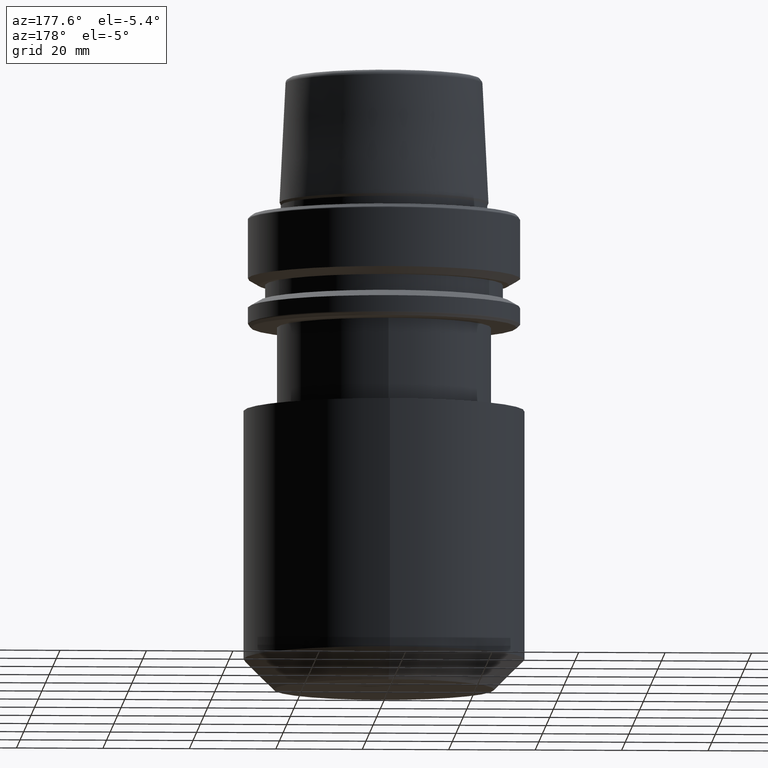
[diagram: clean part render]
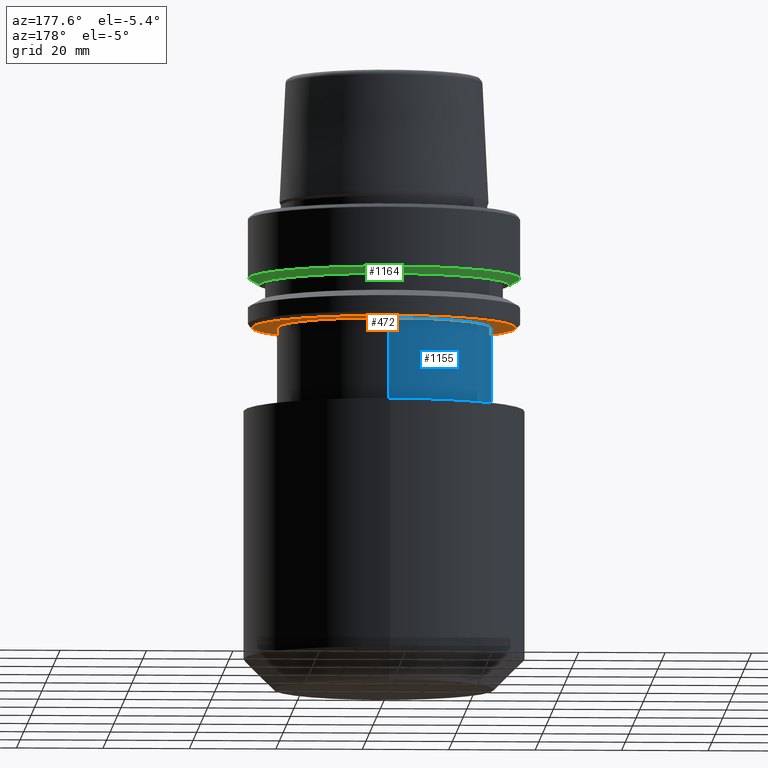
[diagram: same view with three faces highlighted in distinct colors, each labeled with its STEP entity id]
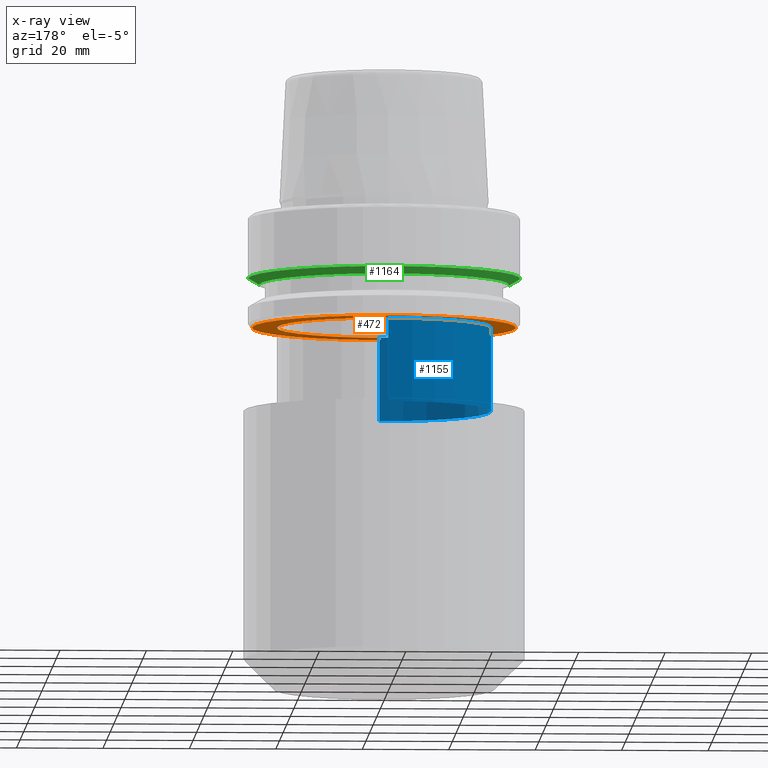
[diagram: x-ray of the same camera — body ghosted, the three highlighted faces saturated]
A machine part, auxiliary view with three faces highlighted in distinct colors.
The next image is the same camera in x-ray (body ghosted, the three faces saturated) — at least one of them is partly hidden behind the body in this view.
Their STEP definitions:

[orange] entity #472 — the highlighted planar face has unit normal (0, -0, 1).
#5 = AXIS2_PLACEMENT_3D ( 'NONE', #557, #347, #908 ) ;
#42 = DIRECTION ( 'NONE',  ( -0.0000000000000000000, -0.0000000000000000000, 1.000000000000000000 ) ) ;
#53 = DIRECTION ( 'NONE',  ( -0.0000000000000000000, -0.0000000000000000000, 1.000000000000000000 ) ) ;
#145 = CIRCLE ( 'NONE', #5, 24.75000000000001100 ) ;
#149 = AXIS2_PLACEMENT_3D ( 'NONE', #713, #42, #997 ) ;
#163 = EDGE_CURVE ( 'NONE', #687, #1171, #145, .T. ) ;
#204 = CARTESIAN_POINT ( 'NONE',  ( 0.0000000000000000000, 30.53431457505076800, -26.00000000000001100 ) ) ;
#207 = CARTESIAN_POINT ( 'NONE',  ( 30.53431457505076800, 0.0000000000000000000, -26.00000000000001100 ) ) ;
#283 = EDGE_CURVE ( 'NONE', #1268, #357, #704, .T. ) ;
#303 = DIRECTION ( 'NONE',  ( -0.0000000000000000000, -0.0000000000000000000, 1.000000000000000000 ) ) ;
#326 = FACE_BOUND ( 'NONE', #1278, .T. ) ;
#347 = DIRECTION ( 'NONE',  ( -0.0000000000000000000, -0.0000000000000000000, 1.000000000000000000 ) ) ;
#357 = VERTEX_POINT ( 'NONE', #207 ) ;
#418 = EDGE_CURVE ( 'NONE', #1171, #687, #747, .T. ) ;
#433 = CARTESIAN_POINT ( 'NONE',  ( 0.0000000000000000000, 0.0000000000000000000, -26.00000000000001100 ) ) ;
#472 = ADVANCED_FACE ( 'NONE', ( #326, #662 ), #905, .F. ) ;
#476 = ORIENTED_EDGE ( 'NONE', *, *, #163, .T. ) ;
#557 = CARTESIAN_POINT ( 'NONE',  ( 0.0000000000000000000, -1.029410340353562200E-014, -26.00000000000001100 ) ) ;
#617 = CARTESIAN_POINT ( 'NONE',  ( 3.031000827889700400E-015, -24.75000000000002100, -26.00000000000001100 ) ) ;
#630 = ORIENTED_EDGE ( 'NONE', *, *, #283, .F. ) ;
#636 = AXIS2_PLACEMENT_3D ( 'NONE', #1077, #303, #682 ) ;
#662 = FACE_OUTER_BOUND ( 'NONE', #1053, .T. ) ;
#672 = ORIENTED_EDGE ( 'NONE', *, *, #723, .F. ) ;
#682 = DIRECTION ( 'NONE',  ( 1.000000000000000000, 0.0000000000000000000, 0.0000000000000000000 ) ) ;
#687 = VERTEX_POINT ( 'NONE', #617 ) ;
#704 = CIRCLE ( 'NONE', #149, 30.53431457505076800 ) ;
#713 = CARTESIAN_POINT ( 'NONE',  ( 0.0000000000000000000, 0.0000000000000000000, -26.00000000000001100 ) ) ;
#723 = EDGE_CURVE ( 'NONE', #357, #1268, #1135, .T. ) ;
#747 = CIRCLE ( 'NONE', #636, 24.75000000000001100 ) ;
#905 = PLANE ( 'NONE',  #1233 ) ;
#908 = DIRECTION ( 'NONE',  ( 1.000000000000000000, 0.0000000000000000000, 0.0000000000000000000 ) ) ;
#925 = DIRECTION ( 'NONE',  ( 0.0000000000000000000, -0.0000000000000000000, 1.000000000000000000 ) ) ;
#994 = ORIENTED_EDGE ( 'NONE', *, *, #418, .T. ) ;
#997 = DIRECTION ( 'NONE',  ( 1.000000000000000000, 0.0000000000000000000, 0.0000000000000000000 ) ) ;
#1053 = EDGE_LOOP ( 'NONE', ( #672, #630 ) ) ;
#1066 = DIRECTION ( 'NONE',  ( 1.000000000000000000, 0.0000000000000000000, 0.0000000000000000000 ) ) ;
#1077 = CARTESIAN_POINT ( 'NONE',  ( 0.0000000000000000000, -1.029410340353562200E-014, -26.00000000000001100 ) ) ;
#1135 = CIRCLE ( 'NONE', #1270, 30.53431457505076800 ) ;
#1171 = VERTEX_POINT ( 'NONE', #1245 ) ;
#1233 = AXIS2_PLACEMENT_3D ( 'NONE', #204, #925, #1066 ) ;
#1245 = CARTESIAN_POINT ( 'NONE',  ( 0.0000000000000000000, 24.75000000000000000, -26.00000000000001100 ) ) ;
#1249 = DIRECTION ( 'NONE',  ( 1.000000000000000000, 0.0000000000000000000, 0.0000000000000000000 ) ) ;
#1263 = CARTESIAN_POINT ( 'NONE',  ( -30.53431457505076800, 3.756694181974139400E-015, -26.00000000000001100 ) ) ;
#1268 = VERTEX_POINT ( 'NONE', #1263 ) ;
#1270 = AXIS2_PLACEMENT_3D ( 'NONE', #433, #53, #1249 ) ;
#1278 = EDGE_LOOP ( 'NONE', ( #994, #476 ) ) ;

[blue] entity #1155 — the highlighted cylindrical surface (partial cylindrical patch) has radius 24.75 mm, axis along (-0, 0, -1).
#18 = CARTESIAN_POINT ( 'NONE',  ( 0.0000000000000000000, -9.331683097516130700E-015, -45.38284271247462700 ) ) ;
#44 = DIRECTION ( 'NONE',  ( -0.0000000000000000000, 4.965320723570064500E-017, -1.000000000000000000 ) ) ;
#68 = VERTEX_POINT ( 'NONE', #450 ) ;
#133 = DIRECTION ( 'NONE',  ( -0.0000000000000000000, 4.965320723570064500E-017, -1.000000000000000000 ) ) ;
#139 = DIRECTION ( 'NONE',  ( 0.0000000000000000000, 1.000000000000000000, 0.0000000000000000000 ) ) ;
#170 = CARTESIAN_POINT ( 'NONE',  ( 3.031000827889700400E-015, -24.75000000000001800, -110.0000000000000000 ) ) ;
#184 = EDGE_LOOP ( 'NONE', ( #991, #528, #950, #1092 ) ) ;
#244 = CARTESIAN_POINT ( 'NONE',  ( 0.0000000000000000000, -6.123233995736767700E-015, -110.0000000000000000 ) ) ;
#303 = DIRECTION ( 'NONE',  ( -0.0000000000000000000, -0.0000000000000000000, 1.000000000000000000 ) ) ;
#348 = VERTEX_POINT ( 'NONE', #479 ) ;
#418 = EDGE_CURVE ( 'NONE', #1171, #687, #747, .T. ) ;
#450 = CARTESIAN_POINT ( 'NONE',  ( 0.0000000000000000000, 24.75000000000000000, -45.38284271247462700 ) ) ;
#458 = AXIS2_PLACEMENT_3D ( 'NONE', #18, #44, #1139 ) ;
#479 = CARTESIAN_POINT ( 'NONE',  ( 3.031000827889700400E-015, -24.75000000000002100, -45.38284271247462700 ) ) ;
#528 = ORIENTED_EDGE ( 'NONE', *, *, #418, .F. ) ;
#549 = FACE_OUTER_BOUND ( 'NONE', #184, .T. ) ;
#579 = VECTOR ( 'NONE', #823, 1000.000000000000000 ) ;
#617 = CARTESIAN_POINT ( 'NONE',  ( 3.031000827889700400E-015, -24.75000000000002100, -26.00000000000001100 ) ) ;
#636 = AXIS2_PLACEMENT_3D ( 'NONE', #1077, #303, #682 ) ;
#669 = EDGE_CURVE ( 'NONE', #687, #348, #1183, .T. ) ;
#682 = DIRECTION ( 'NONE',  ( 1.000000000000000000, 0.0000000000000000000, 0.0000000000000000000 ) ) ;
#687 = VERTEX_POINT ( 'NONE', #617 ) ;
#741 = EDGE_CURVE ( 'NONE', #348, #68, #1084, .T. ) ;
#747 = CIRCLE ( 'NONE', #636, 24.75000000000001100 ) ;
#823 = DIRECTION ( 'NONE',  ( -0.0000000000000000000, 4.965320723570064500E-017, -1.000000000000000000 ) ) ;
#876 = VECTOR ( 'NONE', #133, 1000.000000000000000 ) ;
#950 = ORIENTED_EDGE ( 'NONE', *, *, #1121, .T. ) ;
#991 = ORIENTED_EDGE ( 'NONE', *, *, #669, .F. ) ;
#1001 = LINE ( 'NONE', #1114, #876 ) ;
#1052 = AXIS2_PLACEMENT_3D ( 'NONE', #244, #1221, #139 ) ;
#1077 = CARTESIAN_POINT ( 'NONE',  ( 0.0000000000000000000, -1.029410340353562200E-014, -26.00000000000001100 ) ) ;
#1084 = CIRCLE ( 'NONE', #458, 24.75000000000001100 ) ;
#1092 = ORIENTED_EDGE ( 'NONE', *, *, #741, .F. ) ;
#1114 = CARTESIAN_POINT ( 'NONE',  ( 0.0000000000000000000, 24.75000000000000400, -110.0000000000000000 ) ) ;
#1121 = EDGE_CURVE ( 'NONE', #1171, #68, #1001, .T. ) ;
#1139 = DIRECTION ( 'NONE',  ( 0.0000000000000000000, 1.000000000000000000, 0.0000000000000000000 ) ) ;
#1155 = ADVANCED_FACE ( 'NONE', ( #549 ), #1281, .T. ) ;
#1171 = VERTEX_POINT ( 'NONE', #1245 ) ;
#1183 = LINE ( 'NONE', #170, #579 ) ;
#1221 = DIRECTION ( 'NONE',  ( -0.0000000000000000000, 4.965320723570064500E-017, -1.000000000000000000 ) ) ;
#1245 = CARTESIAN_POINT ( 'NONE',  ( 0.0000000000000000000, 24.75000000000000000, -26.00000000000001100 ) ) ;
#1281 = CYLINDRICAL_SURFACE ( 'NONE', #1052, 24.75000000000001100 ) ;

[green] entity #1164 — the highlighted conical surface has half-angle 60 deg.
#21 = CONICAL_SURFACE ( 'NONE', #793, 28.94089653438085100, 1.047197551196598300 ) ;
#94 = AXIS2_PLACEMENT_3D ( 'NONE', #111, #705, #234 ) ;
#111 = CARTESIAN_POINT ( 'NONE',  ( 0.0000000000000000000, 0.0000000000000000000, -14.62250092524070100 ) ) ;
#128 = CARTESIAN_POINT ( 'NONE',  ( 28.94089653438085100, 0.0000000000000000000, -16.10000000000001600 ) ) ;
#167 = CARTESIAN_POINT ( 'NONE',  ( -28.94089653438085100, 3.700937523921292900E-015, -16.10000000000001600 ) ) ;
#199 = FACE_OUTER_BOUND ( 'NONE', #316, .T. ) ;
#234 = DIRECTION ( 'NONE',  ( 1.000000000000000000, 0.0000000000000000000, 0.0000000000000000000 ) ) ;
#248 = EDGE_CURVE ( 'NONE', #509, #1169, #941, .T. ) ;
#264 = ORIENTED_EDGE ( 'NONE', *, *, #1195, .T. ) ;
#316 = EDGE_LOOP ( 'NONE', ( #542, #264, #584, #775 ) ) ;
#328 = DIRECTION ( 'NONE',  ( -0.0000000000000000000, -0.0000000000000000000, 1.000000000000000000 ) ) ;
#463 = CARTESIAN_POINT ( 'NONE',  ( -28.94089653438085100, 3.544237630528423800E-015, -16.10000000000001600 ) ) ;
#509 = VERTEX_POINT ( 'NONE', #1172 ) ;
#542 = ORIENTED_EDGE ( 'NONE', *, *, #545, .T. ) ;
#545 = EDGE_CURVE ( 'NONE', #1074, #1250, #1050, .T. ) ;
#546 = EDGE_CURVE ( 'NONE', #1074, #509, #810, .T. ) ;
#555 = DIRECTION ( 'NONE',  ( -0.8660254037844389300, 1.060575238724907300E-016, 0.4999999999999995000 ) ) ;
#584 = ORIENTED_EDGE ( 'NONE', *, *, #248, .F. ) ;
#625 = VECTOR ( 'NONE', #1283, 1000.000000000000000 ) ;
#627 = AXIS2_PLACEMENT_3D ( 'NONE', #964, #328, #734 ) ;
#633 = DIRECTION ( 'NONE',  ( 1.000000000000000000, 0.0000000000000000000, 0.0000000000000000000 ) ) ;
#705 = DIRECTION ( 'NONE',  ( -0.0000000000000000000, -0.0000000000000000000, 1.000000000000000000 ) ) ;
#725 = CARTESIAN_POINT ( 'NONE',  ( 28.94089653438085100, 0.0000000000000000000, -16.10000000000001600 ) ) ;
#734 = DIRECTION ( 'NONE',  ( 1.000000000000000000, 0.0000000000000000000, 0.0000000000000000000 ) ) ;
#775 = ORIENTED_EDGE ( 'NONE', *, *, #546, .F. ) ;
#793 = AXIS2_PLACEMENT_3D ( 'NONE', #1022, #921, #633 ) ;
#810 = LINE ( 'NONE', #725, #625 ) ;
#921 = DIRECTION ( 'NONE',  ( -0.0000000000000000000, -0.0000000000000000000, 1.000000000000000000 ) ) ;
#941 = CIRCLE ( 'NONE', #94, 31.50000000000000000 ) ;
#964 = CARTESIAN_POINT ( 'NONE',  ( 0.0000000000000000000, 0.0000000000000000000, -16.10000000000001600 ) ) ;
#987 = LINE ( 'NONE', #463, #1133 ) ;
#1022 = CARTESIAN_POINT ( 'NONE',  ( 0.0000000000000000000, 0.0000000000000000000, -16.10000000000001600 ) ) ;
#1050 = CIRCLE ( 'NONE', #627, 28.94089653438085100 ) ;
#1074 = VERTEX_POINT ( 'NONE', #128 ) ;
#1133 = VECTOR ( 'NONE', #555, 1000.000000000000000 ) ;
#1141 = CARTESIAN_POINT ( 'NONE',  ( -31.50000000000000000, 3.857637417314162700E-015, -14.62250092524070100 ) ) ;
#1164 = ADVANCED_FACE ( 'NONE', ( #199 ), #21, .T. ) ;
#1169 = VERTEX_POINT ( 'NONE', #1141 ) ;
#1172 = CARTESIAN_POINT ( 'NONE',  ( 31.50000000000000000, 0.0000000000000000000, -14.62250092524070100 ) ) ;
#1195 = EDGE_CURVE ( 'NONE', #1250, #1169, #987, .T. ) ;
#1250 = VERTEX_POINT ( 'NONE', #167 ) ;
#1283 = DIRECTION ( 'NONE',  ( 0.8660254037844389300, 0.0000000000000000000, 0.4999999999999995000 ) ) ;